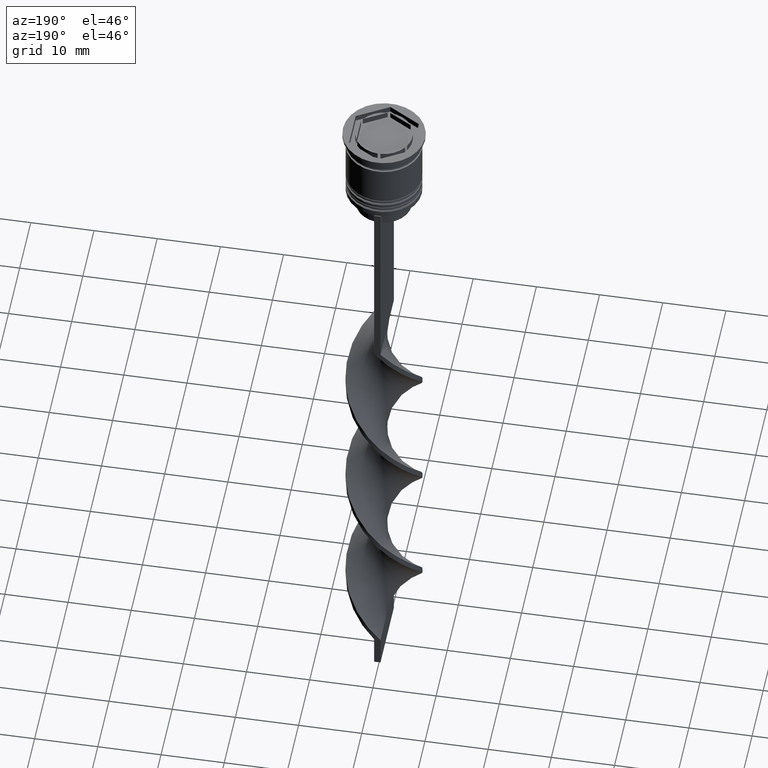
[diagram: clean part render]
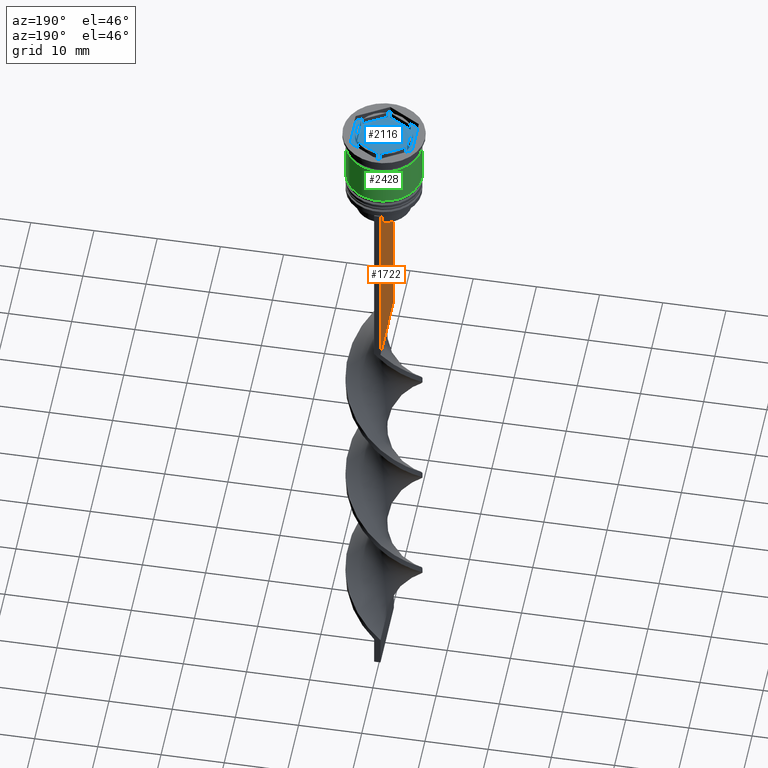
[diagram: same view with three faces highlighted in distinct colors, each labeled with its STEP entity id]
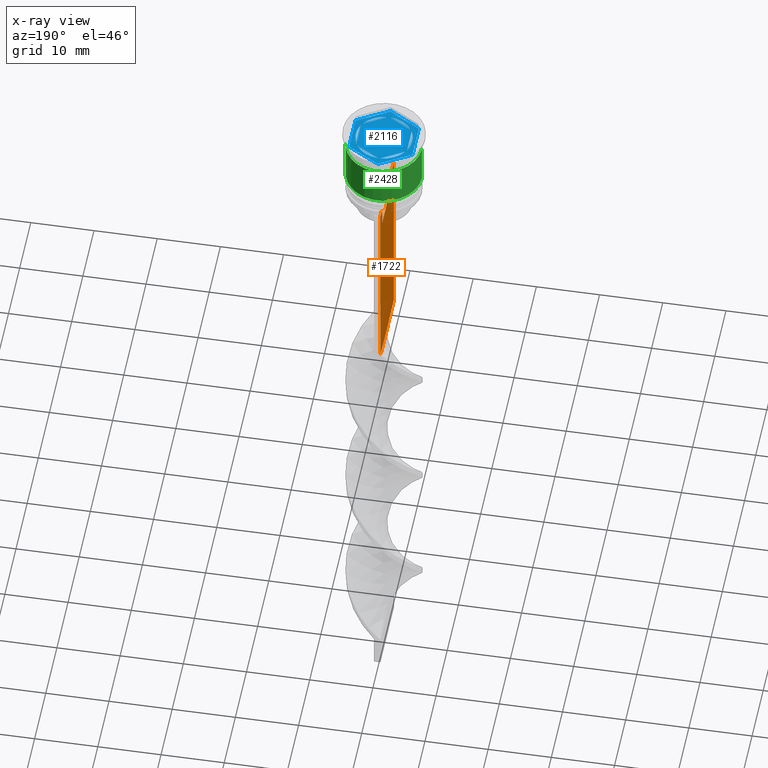
[diagram: x-ray of the same camera — body ghosted, the three highlighted faces saturated]
A machine part, auxiliary view with three faces highlighted in distinct colors.
The next image is the same camera in x-ray (body ghosted, the three faces saturated) — at least one of them is partly hidden behind the body in this view.
Their STEP definitions:

[orange] entity #1722 — the highlighted planar face has unit normal (-1, 0, 0).
#66 = VECTOR ( 'NONE', #1417, 1000.000000000000000 ) ;
#75 = ORIENTED_EDGE ( 'NONE', *, *, #507, .F. ) ;
#76 = EDGE_CURVE ( 'NONE', #554, #842, #330, .T. ) ;
#86 = CARTESIAN_POINT ( 'NONE',  ( -0.4999999999999997780, 4.371498598878878816, -13.00000000000000178 ) ) ;
#166 = CARTESIAN_POINT ( 'NONE',  ( -0.4999999999999997780, 4.371498598878878816, -13.00000000000000178 ) ) ;
#189 = DIRECTION ( 'NONE',  ( 0.000000000000000000, 1.000000000000000000, 0.000000000000000000 ) ) ;
#238 = VECTOR ( 'NONE', #2755, 1000.000000000000000 ) ;
#269 = ORIENTED_EDGE ( 'NONE', *, *, #3526, .F. ) ;
#278 = DIRECTION ( 'NONE',  ( 0.000000000000000000, 0.000000000000000000, -1.000000000000000000 ) ) ;
#330 = LINE ( 'NONE', #2545, #66 ) ;
#380 = DIRECTION ( 'NONE',  ( 0.000000000000000000, -1.000000000000000000, 0.000000000000000000 ) ) ;
#405 = EDGE_CURVE ( 'NONE', #720, #2137, #1685, .T. ) ;
#443 = CARTESIAN_POINT ( 'NONE',  ( -0.4999999999999997780, -4.874423042781576676, -12.50000000000000000 ) ) ;
#474 = CARTESIAN_POINT ( 'NONE',  ( -0.4999999999999997780, -6.000000000000000000, -12.50000000000000000 ) ) ;
#490 = LINE ( 'NONE', #474, #3397 ) ;
#507 = EDGE_CURVE ( 'NONE', #1478, #2245, #2344, .T. ) ;
#511 = CARTESIAN_POINT ( 'NONE',  ( -0.4999999999999997780, -4.371498598878878816, -13.00000000000000178 ) ) ;
#522 = VECTOR ( 'NONE', #3586, 1000.000000000000000 ) ;
#554 = VERTEX_POINT ( 'NONE', #3575 ) ;
#579 = EDGE_CURVE ( 'NONE', #1487, #2999, #3084, .T. ) ;
#628 = VECTOR ( 'NONE', #189, 1000.000000000000000 ) ;
#695 = ORIENTED_EDGE ( 'NONE', *, *, #579, .T. ) ;
#703 = CARTESIAN_POINT ( 'NONE',  ( -0.4999999999999997780, 4.539195634199897356, -12.83338923751318816 ) ) ;
#720 = VERTEX_POINT ( 'NONE', #1479 ) ;
#725 = DIRECTION ( 'NONE',  ( 0.000000000000000000, 0.000000000000000000, -1.000000000000000000 ) ) ;
#744 = LINE ( 'NONE', #1890, #522 ) ;
#842 = VERTEX_POINT ( 'NONE', #3131 ) ;
#845 = EDGE_CURVE ( 'NONE', #2510, #3006, #2031, .T. ) ;
#870 = ORIENTED_EDGE ( 'NONE', *, *, #1009, .F. ) ;
#954 = CARTESIAN_POINT ( 'NONE',  ( -0.4999999999999997780, 4.706831415367290106, -12.66671683478478982 ) ) ;
#996 = CARTESIAN_POINT ( 'NONE',  ( -0.4999999999999997780, -4.874423042781576676, -12.50000000000000000 ) ) ;
#1009 = EDGE_CURVE ( 'NONE', #3006, #2753, #3425, .T. ) ;
#1039 = CARTESIAN_POINT ( 'NONE',  ( -0.4999999999999997780, -4.371498598878878816, -13.00000000000000178 ) ) ;
#1134 = EDGE_LOOP ( 'NONE', ( #870, #3245, #1903, #695, #3162, #1596, #269, #75, #1341, #2025, #1422, #3188 ) ) ;
#1148 = CARTESIAN_POINT ( 'NONE',  ( -0.4999999999999997780, -4.371498598878878816, 0.000000000000000000 ) ) ;
#1206 = CARTESIAN_POINT ( 'NONE',  ( -0.4999999999999997780, -6.000000000000000000, -12.50000000000000000 ) ) ;
#1235 = CARTESIAN_POINT ( 'NONE',  ( -0.4999999999999997780, 4.371498598878878816, -15.50000000000000000 ) ) ;
#1244 = LINE ( 'NONE', #3524, #628 ) ;
#1334 = VECTOR ( 'NONE', #725, 1000.000000000000000 ) ;
#1341 = ORIENTED_EDGE ( 'NONE', *, *, #2146, .F. ) ;
#1417 = DIRECTION ( 'NONE',  ( 0.000000000000000000, 0.000000000000000000, -1.000000000000000000 ) ) ;
#1422 = ORIENTED_EDGE ( 'NONE', *, *, #2819, .F. ) ;
#1450 = DIRECTION ( 'NONE',  ( 0.000000000000000000, 0.000000000000000000, 1.000000000000000000 ) ) ;
#1478 = VERTEX_POINT ( 'NONE', #996 ) ;
#1479 = CARTESIAN_POINT ( 'NONE',  ( -0.4999999999999997780, -4.371498598878878816, -15.50000000000000000 ) ) ;
#1482 = CARTESIAN_POINT ( 'NONE',  ( -0.4999999999999997780, 6.000000000000000888, -43.50000000000000000 ) ) ;
#1487 = VERTEX_POINT ( 'NONE', #2941 ) ;
#1584 = DIRECTION ( 'NONE',  ( 0.000000000000000000, -1.000000000000000000, 0.000000000000000000 ) ) ;
#1596 = ORIENTED_EDGE ( 'NONE', *, *, #76, .F. ) ;
#1611 = EDGE_CURVE ( 'NONE', #842, #2999, #1244, .T. ) ;
#1661 = B_SPLINE_CURVE_WITH_KNOTS ( 'NONE', 3,
 ( #511, #3551, #2434, #443 ),
 .UNSPECIFIED., .F., .F.,
 ( 4, 4 ),
 ( 0.02089901220910806920, 0.02161421017310284978 ),
 .UNSPECIFIED. ) ;
#1685 = LINE ( 'NONE', #1148, #2049 ) ;
#1696 = CARTESIAN_POINT ( 'NONE',  ( -0.4999999999999997780, -6.000000000000000000, -12.50000000000000000 ) ) ;
#1704 = CARTESIAN_POINT ( 'NONE',  ( -0.4999999999999997780, 6.000000000000000888, -0.4584054212077061097 ) ) ;
#1722 = ADVANCED_FACE ( 'NONE', ( #1959 ), #2848, .T. ) ;
#1865 = AXIS2_PLACEMENT_3D ( 'NONE', #3405, #2865, #1450 ) ;
#1890 = CARTESIAN_POINT ( 'NONE',  ( -0.4999999999999997780, -6.000000000000000000, -12.50000000000000000 ) ) ;
#1903 = ORIENTED_EDGE ( 'NONE', *, *, #3553, .F. ) ;
#1959 = FACE_OUTER_BOUND ( 'NONE', #1134, .T. ) ;
#1995 = LINE ( 'NONE', #2846, #238 ) ;
#1997 = DIRECTION ( 'NONE',  ( 0.000000000000000000, -1.000000000000000000, 0.000000000000000000 ) ) ;
#2002 = CARTESIAN_POINT ( 'NONE',  ( -0.4999999999999997780, 5.878775382679627626, -12.50000000000000000 ) ) ;
#2025 = ORIENTED_EDGE ( 'NONE', *, *, #405, .F. ) ;
#2031 = LINE ( 'NONE', #1696, #2101 ) ;
#2049 = VECTOR ( 'NONE', #3416, 1000.000000000000000 ) ;
#2101 = VECTOR ( 'NONE', #1997, 1000.000000000000000 ) ;
#2137 = VERTEX_POINT ( 'NONE', #1039 ) ;
#2146 = EDGE_CURVE ( 'NONE', #2137, #1478, #1661, .T. ) ;
#2245 = VERTEX_POINT ( 'NONE', #2732 ) ;
#2344 = LINE ( 'NONE', #1206, #2933 ) ;
#2348 = CARTESIAN_POINT ( 'NONE',  ( -0.4999999999999997780, 4.874423042781576676, -12.50000000000000000 ) ) ;
#2364 = CARTESIAN_POINT ( 'NONE',  ( -0.4999999999999997780, 4.874423042781576676, -12.50000000000000000 ) ) ;
#2434 = CARTESIAN_POINT ( 'NONE',  ( -0.4999999999999997780, -4.706831372970964544, -12.66671687695981596 ) ) ;
#2480 = VERTEX_POINT ( 'NONE', #1235 ) ;
#2510 = VERTEX_POINT ( 'NONE', #2002 ) ;
#2545 = CARTESIAN_POINT ( 'NONE',  ( -0.4999999999999997780, -6.000000000000000000, -0.4584054212077061097 ) ) ;
#2732 = CARTESIAN_POINT ( 'NONE',  ( -0.4999999999999997780, -5.878775382679627626, -12.50000000000000000 ) ) ;
#2753 = VERTEX_POINT ( 'NONE', #86 ) ;
#2755 = DIRECTION ( 'NONE',  ( 0.000000000000000000, -1.000000000000000000, 0.000000000000000000 ) ) ;
#2819 = EDGE_CURVE ( 'NONE', #2480, #720, #1995, .T. ) ;
#2846 = CARTESIAN_POINT ( 'NONE',  ( -0.4999999999999997780, 4.399999999999999467, -15.50000000000000000 ) ) ;
#2848 = PLANE ( 'NONE',  #1865 ) ;
#2865 = DIRECTION ( 'NONE',  ( -1.000000000000000000, 0.000000000000000000, 0.000000000000000000 ) ) ;
#2933 = VECTOR ( 'NONE', #380, 1000.000000000000000 ) ;
#2941 = CARTESIAN_POINT ( 'NONE',  ( -0.4999999999999997780, 6.000000000000001776, -12.50000000000000000 ) ) ;
#2984 = VECTOR ( 'NONE', #278, 1000.000000000000000 ) ;
#2999 = VERTEX_POINT ( 'NONE', #1482 ) ;
#3006 = VERTEX_POINT ( 'NONE', #2364 ) ;
#3084 = LINE ( 'NONE', #1704, #2984 ) ;
#3131 = CARTESIAN_POINT ( 'NONE',  ( -0.4999999999999997780, -6.000000000000000000, -43.50000000000000000 ) ) ;
#3162 = ORIENTED_EDGE ( 'NONE', *, *, #1611, .F. ) ;
#3188 = ORIENTED_EDGE ( 'NONE', *, *, #3540, .F. ) ;
#3242 = CARTESIAN_POINT ( 'NONE',  ( -0.4999999999999997780, 4.371498598878878816, 0.000000000000000000 ) ) ;
#3245 = ORIENTED_EDGE ( 'NONE', *, *, #845, .F. ) ;
#3397 = VECTOR ( 'NONE', #1584, 1000.000000000000000 ) ;
#3405 = CARTESIAN_POINT ( 'NONE',  ( -0.4999999999999997780, -6.000000000000000000, -0.4584054212077061097 ) ) ;
#3416 = DIRECTION ( 'NONE',  ( -0.000000000000000000, -0.000000000000000000, 1.000000000000000000 ) ) ;
#3425 = B_SPLINE_CURVE_WITH_KNOTS ( 'NONE', 3,
 ( #2348, #954, #703, #166 ),
 .UNSPECIFIED., .F., .F.,
 ( 4, 4 ),
 ( 0.008336552452178418518, 0.009045730124312837891 ),
 .UNSPECIFIED. ) ;
#3515 = LINE ( 'NONE', #3242, #1334 ) ;
#3524 = CARTESIAN_POINT ( 'NONE',  ( -0.4999999999999997780, -6.000000000000000000, -43.50000000000000000 ) ) ;
#3526 = EDGE_CURVE ( 'NONE', #2245, #554, #744, .T. ) ;
#3540 = EDGE_CURVE ( 'NONE', #2753, #2480, #3515, .T. ) ;
#3551 = CARTESIAN_POINT ( 'NONE',  ( -0.4999999999999997780, -4.539195586926424220, -12.83338928448044136 ) ) ;
#3553 = EDGE_CURVE ( 'NONE', #1487, #2510, #490, .T. ) ;
#3575 = CARTESIAN_POINT ( 'NONE',  ( -0.4999999999999997780, -6.000000000000000000, -12.50000000000000000 ) ) ;
#3586 = DIRECTION ( 'NONE',  ( 0.000000000000000000, -1.000000000000000000, 0.000000000000000000 ) ) ;

[blue] entity #2116 — the highlighted planar face has unit normal (0, 0, 1).
#23 = CARTESIAN_POINT ( 'NONE',  ( -4.000000000000000000, -2.309401076758503368, -1.000000000000000888 ) ) ;
#95 = ORIENTED_EDGE ( 'NONE', *, *, #1333, .T. ) ;
#152 = LINE ( 'NONE', #2950, #1041 ) ;
#161 = VERTEX_POINT ( 'NONE', #1247 ) ;
#168 = LINE ( 'NONE', #3139, #639 ) ;
#187 = DIRECTION ( 'NONE',  ( 0.8660254037844385966, 0.5000000000000001110, -0.000000000000000000 ) ) ;
#229 = FACE_OUTER_BOUND ( 'NONE', #3119, .T. ) ;
#242 = AXIS2_PLACEMENT_3D ( 'NONE', #590, #2840, #318 ) ;
#270 = CARTESIAN_POINT ( 'NONE',  ( 4.000000000000000000, 2.309401076758504257, -1.000000000000000888 ) ) ;
#276 = VERTEX_POINT ( 'NONE', #1511 ) ;
#302 = DIRECTION ( 'NONE',  ( 0.000000000000000000, 0.000000000000000000, 1.000000000000000000 ) ) ;
#318 = DIRECTION ( 'NONE',  ( 1.000000000000000000, 0.000000000000000000, 0.000000000000000000 ) ) ;
#351 = VECTOR ( 'NONE', #2185, 1000.000000000000000 ) ;
#386 = VERTEX_POINT ( 'NONE', #755 ) ;
#429 = CARTESIAN_POINT ( 'NONE',  ( 0.000000000000000000, 0.000000000000000000, -1.000000000000000000 ) ) ;
#477 = LINE ( 'NONE', #1311, #351 ) ;
#483 = CARTESIAN_POINT ( 'NONE',  ( 3.785357107135712162, -2.433325208733341238, -1.000000000000000888 ) ) ;
#499 = CARTESIAN_POINT ( 'NONE',  ( 4.336808689942017736E-16, 4.618802153517006737, -1.000000000000000888 ) ) ;
#578 = AXIS2_PLACEMENT_3D ( 'NONE', #1122, #2253, #3094 ) ;
#590 = CARTESIAN_POINT ( 'NONE',  ( 0.000000000000000000, 0.000000000000000000, -1.000000000000000000 ) ) ;
#618 = ORIENTED_EDGE ( 'NONE', *, *, #2040, .F. ) ;
#627 = DIRECTION ( 'NONE',  ( -0.8660254037844387076, 0.4999999999999997224, 0.000000000000000000 ) ) ;
#635 = CIRCLE ( 'NONE', #578, 4.500000000000000888 ) ;
#639 = VECTOR ( 'NONE', #2386, 1000.000000000000000 ) ;
#707 = ORIENTED_EDGE ( 'NONE', *, *, #2379, .F. ) ;
#715 = DIRECTION ( 'NONE',  ( -0.8660254037844387076, -0.4999999999999998890, 0.000000000000000000 ) ) ;
#729 = DIRECTION ( 'NONE',  ( 0.000000000000000000, 0.000000000000000000, 1.000000000000000000 ) ) ;
#748 = FACE_BOUND ( 'NONE', #2779, .T. ) ;
#755 = CARTESIAN_POINT ( 'NONE',  ( 0.2146428928642876155, -4.494878021542170643, -1.000000000000000888 ) ) ;
#756 = ORIENTED_EDGE ( 'NONE', *, *, #2084, .T. ) ;
#766 = ORIENTED_EDGE ( 'NONE', *, *, #982, .F. ) ;
#770 = CARTESIAN_POINT ( 'NONE',  ( 5.612359739892467248E-18, -5.773502691896257311, -1.000000000000000000 ) ) ;
#803 = AXIS2_PLACEMENT_3D ( 'NONE', #2962, #729, #1855 ) ;
#815 = VERTEX_POINT ( 'NONE', #1735 ) ;
#864 = CIRCLE ( 'NONE', #3329, 4.500000000000000888 ) ;
#908 = EDGE_CURVE ( 'NONE', #276, #2431, #1138, .T. ) ;
#927 = VECTOR ( 'NONE', #3144, 1000.000000000000227 ) ;
#931 = CIRCLE ( 'NONE', #242, 4.500000000000000888 ) ;
#979 = VECTOR ( 'NONE', #627, 1000.000000000000114 ) ;
#982 = EDGE_CURVE ( 'NONE', #1183, #2629, #635, .T. ) ;
#1002 = VERTEX_POINT ( 'NONE', #2829 ) ;
#1041 = VECTOR ( 'NONE', #715, 1000.000000000000114 ) ;
#1103 = ORIENTED_EDGE ( 'NONE', *, *, #3339, .F. ) ;
#1104 = DIRECTION ( 'NONE',  ( 0.8660254037844387076, -0.4999999999999998335, 0.000000000000000000 ) ) ;
#1107 = VERTEX_POINT ( 'NONE', #1485 ) ;
#1115 = DIRECTION ( 'NONE',  ( 1.000000000000000000, 0.000000000000000000, 0.000000000000000000 ) ) ;
#1122 = CARTESIAN_POINT ( 'NONE',  ( 0.000000000000000000, 0.000000000000000000, -1.000000000000000000 ) ) ;
#1124 = EDGE_CURVE ( 'NONE', #1107, #3478, #3221, .T. ) ;
#1138 = LINE ( 'NONE', #270, #2404 ) ;
#1172 = ORIENTED_EDGE ( 'NONE', *, *, #1538, .F. ) ;
#1183 = VERTEX_POINT ( 'NONE', #1802 ) ;
#1212 = VECTOR ( 'NONE', #187, 1000.000000000000114 ) ;
#1223 = EDGE_CURVE ( 'NONE', #3154, #815, #2397, .T. ) ;
#1225 = ORIENTED_EDGE ( 'NONE', *, *, #3390, .F. ) ;
#1241 = CARTESIAN_POINT ( 'NONE',  ( -5.000000000000000888, -2.886751345948129543, -1.000000000000000000 ) ) ;
#1247 = CARTESIAN_POINT ( 'NONE',  ( -4.000000000000000000, 2.061552812808831625, -1.000000000000000888 ) ) ;
#1272 = VERTEX_POINT ( 'NONE', #2915 ) ;
#1276 = PLANE ( 'NONE',  #803 ) ;
#1300 = ORIENTED_EDGE ( 'NONE', *, *, #2781, .F. ) ;
#1301 = EDGE_CURVE ( 'NONE', #3180, #1002, #2623, .T. ) ;
#1311 = CARTESIAN_POINT ( 'NONE',  ( -5.000000000000000888, 2.886751345948128655, -1.000000000000000000 ) ) ;
#1331 = DIRECTION ( 'NONE',  ( -0.8660254037844387076, -0.4999999999999998890, 0.000000000000000000 ) ) ;
#1333 = EDGE_CURVE ( 'NONE', #2772, #3532, #477, .T. ) ;
#1360 = VERTEX_POINT ( 'NONE', #1588 ) ;
#1391 = VECTOR ( 'NONE', #1615, 1000.000000000000000 ) ;
#1445 = LINE ( 'NONE', #2326, #1391 ) ;
#1459 = ORIENTED_EDGE ( 'NONE', *, *, #3014, .T. ) ;
#1485 = CARTESIAN_POINT ( 'NONE',  ( 5.000000000000000888, 2.886751345948129543, -1.000000000000000000 ) ) ;
#1503 = CIRCLE ( 'NONE', #2986, 4.500000000000000888 ) ;
#1511 = CARTESIAN_POINT ( 'NONE',  ( 0.2146428928642876155, 4.494878021542170643, -1.000000000000000888 ) ) ;
#1515 = EDGE_LOOP ( 'NONE', ( #2307, #1300, #766 ) ) ;
#1521 = CARTESIAN_POINT ( 'NONE',  ( 5.000000000000000888, 2.886751345948129543, -1.000000000000000000 ) ) ;
#1538 = EDGE_CURVE ( 'NONE', #1360, #2449, #168, .T. ) ;
#1552 = FACE_BOUND ( 'NONE', #2668, .T. ) ;
#1557 = AXIS2_PLACEMENT_3D ( 'NONE', #1749, #3213, #3434 ) ;
#1588 = CARTESIAN_POINT ( 'NONE',  ( 3.999999999999999112, 2.061552812808832513, -1.000000000000000888 ) ) ;
#1606 = CARTESIAN_POINT ( 'NONE',  ( 5.000000000000000000, -2.886751345948128655, -1.000000000000000000 ) ) ;
#1615 = DIRECTION ( 'NONE',  ( 0.000000000000000000, 1.000000000000000000, 0.000000000000000000 ) ) ;
#1618 = VECTOR ( 'NONE', #2419, 1000.000000000000000 ) ;
#1666 = CARTESIAN_POINT ( 'NONE',  ( 0.000000000000000000, 0.000000000000000000, -1.000000000000000000 ) ) ;
#1687 = AXIS2_PLACEMENT_3D ( 'NONE', #3002, #3033, #2205 ) ;
#1706 = CARTESIAN_POINT ( 'NONE',  ( 0.000000000000000000, 0.000000000000000000, -1.000000000000000000 ) ) ;
#1735 = CARTESIAN_POINT ( 'NONE',  ( -0.2146428928642871992, -4.494878021542169755, -1.000000000000000888 ) ) ;
#1749 = CARTESIAN_POINT ( 'NONE',  ( 0.000000000000000000, 0.000000000000000000, -1.000000000000000000 ) ) ;
#1802 = CARTESIAN_POINT ( 'NONE',  ( -4.500000000000000888, 0.000000000000000000, -1.000000000000000000 ) ) ;
#1841 = LINE ( 'NONE', #1606, #1618 ) ;
#1855 = DIRECTION ( 'NONE',  ( 1.000000000000000000, 0.000000000000000000, -0.000000000000000000 ) ) ;
#1936 = VECTOR ( 'NONE', #2249, 1000.000000000000227 ) ;
#1957 = ORIENTED_EDGE ( 'NONE', *, *, #908, .F. ) ;
#1964 = EDGE_LOOP ( 'NONE', ( #1225, #618 ) ) ;
#1992 = VECTOR ( 'NONE', #2625, 1000.000000000000114 ) ;
#2038 = VERTEX_POINT ( 'NONE', #483 ) ;
#2040 = EDGE_CURVE ( 'NONE', #1272, #3331, #3578, .T. ) ;
#2055 = CIRCLE ( 'NONE', #3044, 4.500000000000000888 ) ;
#2064 = ORIENTED_EDGE ( 'NONE', *, *, #2922, .F. ) ;
#2084 = EDGE_CURVE ( 'NONE', #1002, #1107, #1841, .T. ) ;
#2116 = ADVANCED_FACE ( 'NONE', ( #1552, #748, #3299, #3018, #2748, #3519, #229 ), #1276, .T. ) ;
#2140 = CARTESIAN_POINT ( 'NONE',  ( -5.000000000000000888, -2.886751345948129543, -1.000000000000000000 ) ) ;
#2185 = DIRECTION ( 'NONE',  ( 0.000000000000000000, -1.000000000000000000, 0.000000000000000000 ) ) ;
#2202 = EDGE_LOOP ( 'NONE', ( #707, #2064 ) ) ;
#2205 = DIRECTION ( 'NONE',  ( 1.000000000000000000, 0.000000000000000000, 0.000000000000000000 ) ) ;
#2217 = EDGE_CURVE ( 'NONE', #2449, #1360, #2346, .T. ) ;
#2249 = DIRECTION ( 'NONE',  ( -0.8660254037844384856, 0.5000000000000001110, 0.000000000000000000 ) ) ;
#2253 = DIRECTION ( 'NONE',  ( 0.000000000000000000, 0.000000000000000000, 1.000000000000000000 ) ) ;
#2269 = CARTESIAN_POINT ( 'NONE',  ( -5.000000000000000888, 2.886751345948128655, -1.000000000000000000 ) ) ;
#2284 = LINE ( 'NONE', #23, #1936 ) ;
#2297 = ORIENTED_EDGE ( 'NONE', *, *, #1301, .T. ) ;
#2307 = ORIENTED_EDGE ( 'NONE', *, *, #2369, .F. ) ;
#2326 = CARTESIAN_POINT ( 'NONE',  ( -4.000000000000000000, 2.309401076758502924, -1.000000000000000888 ) ) ;
#2346 = CIRCLE ( 'NONE', #1687, 4.500000000000000888 ) ;
#2369 = EDGE_CURVE ( 'NONE', #161, #1183, #1503, .T. ) ;
#2379 = EDGE_CURVE ( 'NONE', #386, #2038, #864, .T. ) ;
#2386 = DIRECTION ( 'NONE',  ( -1.877893248421448296E-16, -1.000000000000000000, 0.000000000000000000 ) ) ;
#2397 = CIRCLE ( 'NONE', #1557, 4.500000000000000888 ) ;
#2404 = VECTOR ( 'NONE', #1104, 1000.000000000000114 ) ;
#2419 = DIRECTION ( 'NONE',  ( 1.502314598737159278E-16, 1.000000000000000000, 0.000000000000000000 ) ) ;
#2423 = ORIENTED_EDGE ( 'NONE', *, *, #1124, .T. ) ;
#2431 = VERTEX_POINT ( 'NONE', #3608 ) ;
#2449 = VERTEX_POINT ( 'NONE', #2604 ) ;
#2514 = ORIENTED_EDGE ( 'NONE', *, *, #2936, .F. ) ;
#2583 = DIRECTION ( 'NONE',  ( 0.000000000000000000, 0.000000000000000000, 1.000000000000000000 ) ) ;
#2604 = CARTESIAN_POINT ( 'NONE',  ( 3.999999999999999112, -2.061552812808833846, -1.000000000000000888 ) ) ;
#2623 = LINE ( 'NONE', #3419, #927 ) ;
#2625 = DIRECTION ( 'NONE',  ( 0.8660254037844387076, -0.4999999999999997224, 0.000000000000000000 ) ) ;
#2629 = VERTEX_POINT ( 'NONE', #2650 ) ;
#2650 = CARTESIAN_POINT ( 'NONE',  ( -4.000000000000000000, -2.061552812808831625, -1.000000000000000888 ) ) ;
#2668 = EDGE_LOOP ( 'NONE', ( #2514, #1957 ) ) ;
#2712 = CARTESIAN_POINT ( 'NONE',  ( 0.000000000000000000, 5.773502691896257311, -1.000000000000000000 ) ) ;
#2733 = LINE ( 'NONE', #2785, #2884 ) ;
#2748 = FACE_BOUND ( 'NONE', #1515, .T. ) ;
#2765 = ORIENTED_EDGE ( 'NONE', *, *, #1223, .F. ) ;
#2772 = VERTEX_POINT ( 'NONE', #2269 ) ;
#2779 = EDGE_LOOP ( 'NONE', ( #3407, #1172 ) ) ;
#2781 = EDGE_CURVE ( 'NONE', #2629, #161, #1445, .T. ) ;
#2785 = CARTESIAN_POINT ( 'NONE',  ( 0.000000000000000000, 5.773502691896257311, -1.000000000000000000 ) ) ;
#2829 = CARTESIAN_POINT ( 'NONE',  ( 5.000000000000000000, -2.886751345948128655, -1.000000000000000000 ) ) ;
#2840 = DIRECTION ( 'NONE',  ( 0.000000000000000000, 0.000000000000000000, 1.000000000000000000 ) ) ;
#2857 = CARTESIAN_POINT ( 'NONE',  ( -0.2146428928642867551, 4.494878021542170643, -1.000000000000000888 ) ) ;
#2884 = VECTOR ( 'NONE', #1331, 1000.000000000000114 ) ;
#2915 = CARTESIAN_POINT ( 'NONE',  ( -3.785357107135713939, 2.433325208733339018, -1.000000000000000888 ) ) ;
#2922 = EDGE_CURVE ( 'NONE', #2038, #386, #152, .T. ) ;
#2936 = EDGE_CURVE ( 'NONE', #2431, #276, #2055, .T. ) ;
#2950 = CARTESIAN_POINT ( 'NONE',  ( -8.673617379884035472E-16, -4.618802153517006737, -1.000000000000000888 ) ) ;
#2962 = CARTESIAN_POINT ( 'NONE',  ( 0.000000000000000000, 0.000000000000000000, -1.000000000000000000 ) ) ;
#2964 = LINE ( 'NONE', #1241, #1992 ) ;
#2979 = CARTESIAN_POINT ( 'NONE',  ( -3.785357107135713939, -2.433325208733338130, -1.000000000000000888 ) ) ;
#2986 = AXIS2_PLACEMENT_3D ( 'NONE', #1706, #302, #3052 ) ;
#3002 = CARTESIAN_POINT ( 'NONE',  ( 0.000000000000000000, 0.000000000000000000, -1.000000000000000000 ) ) ;
#3014 = EDGE_CURVE ( 'NONE', #3532, #3180, #2964, .T. ) ;
#3018 = FACE_BOUND ( 'NONE', #3282, .T. ) ;
#3033 = DIRECTION ( 'NONE',  ( 0.000000000000000000, 0.000000000000000000, 1.000000000000000000 ) ) ;
#3044 = AXIS2_PLACEMENT_3D ( 'NONE', #429, #3167, #3452 ) ;
#3052 = DIRECTION ( 'NONE',  ( 1.000000000000000000, 0.000000000000000000, 0.000000000000000000 ) ) ;
#3094 = DIRECTION ( 'NONE',  ( 1.000000000000000000, 0.000000000000000000, 0.000000000000000000 ) ) ;
#3119 = EDGE_LOOP ( 'NONE', ( #2423, #3428, #95, #1459, #2297, #756 ) ) ;
#3139 = CARTESIAN_POINT ( 'NONE',  ( 3.999999999999999112, -2.309401076758503812, -1.000000000000000888 ) ) ;
#3144 = DIRECTION ( 'NONE',  ( 0.8660254037844385966, 0.4999999999999998890, 0.000000000000000000 ) ) ;
#3154 = VERTEX_POINT ( 'NONE', #2979 ) ;
#3167 = DIRECTION ( 'NONE',  ( 0.000000000000000000, 0.000000000000000000, 1.000000000000000000 ) ) ;
#3174 = EDGE_CURVE ( 'NONE', #3478, #2772, #2733, .T. ) ;
#3180 = VERTEX_POINT ( 'NONE', #770 ) ;
#3213 = DIRECTION ( 'NONE',  ( 0.000000000000000000, 0.000000000000000000, 1.000000000000000000 ) ) ;
#3221 = LINE ( 'NONE', #1521, #979 ) ;
#3282 = EDGE_LOOP ( 'NONE', ( #2765, #1103 ) ) ;
#3299 = FACE_BOUND ( 'NONE', #2202, .T. ) ;
#3329 = AXIS2_PLACEMENT_3D ( 'NONE', #1666, #2583, #1115 ) ;
#3331 = VERTEX_POINT ( 'NONE', #2857 ) ;
#3339 = EDGE_CURVE ( 'NONE', #815, #3154, #2284, .T. ) ;
#3390 = EDGE_CURVE ( 'NONE', #3331, #1272, #931, .T. ) ;
#3407 = ORIENTED_EDGE ( 'NONE', *, *, #2217, .F. ) ;
#3419 = CARTESIAN_POINT ( 'NONE',  ( 5.612359739892467248E-18, -5.773502691896257311, -1.000000000000000000 ) ) ;
#3428 = ORIENTED_EDGE ( 'NONE', *, *, #3174, .T. ) ;
#3434 = DIRECTION ( 'NONE',  ( 1.000000000000000000, 0.000000000000000000, 0.000000000000000000 ) ) ;
#3452 = DIRECTION ( 'NONE',  ( 1.000000000000000000, 0.000000000000000000, 0.000000000000000000 ) ) ;
#3478 = VERTEX_POINT ( 'NONE', #2712 ) ;
#3519 = FACE_BOUND ( 'NONE', #1964, .T. ) ;
#3532 = VERTEX_POINT ( 'NONE', #2140 ) ;
#3578 = LINE ( 'NONE', #499, #1212 ) ;
#3608 = CARTESIAN_POINT ( 'NONE',  ( 3.785357107135712162, 2.433325208733341238, -1.000000000000000888 ) ) ;

[green] entity #2428 — the highlighted cylindrical surface (partial cylindrical patch) has radius 6 mm, axis along (-0, -0, 1).
#18 = VECTOR ( 'NONE', #2529, 1000.000000000000000 ) ;
#46 = VERTEX_POINT ( 'NONE', #2875 ) ;
#81 = CARTESIAN_POINT ( 'NONE',  ( 6.000000000000000000, 0.000000000000000000, 0.000000000000000000 ) ) ;
#155 = VERTEX_POINT ( 'NONE', #656 ) ;
#246 = DIRECTION ( 'NONE',  ( 1.000000000000000000, 0.000000000000000000, 0.000000000000000000 ) ) ;
#317 = FACE_OUTER_BOUND ( 'NONE', #2568, .T. ) ;
#333 = LINE ( 'NONE', #81, #18 ) ;
#484 = ORIENTED_EDGE ( 'NONE', *, *, #3503, .T. ) ;
#503 = DIRECTION ( 'NONE',  ( -0.000000000000000000, -0.000000000000000000, 1.000000000000000000 ) ) ;
#532 = CARTESIAN_POINT ( 'NONE',  ( -6.000000000000001776, 7.347880794884121708E-16, -9.000000000000001776 ) ) ;
#656 = CARTESIAN_POINT ( 'NONE',  ( 5.999999999999999112, 0.000000000000000000, -2.500000000000000444 ) ) ;
#796 = ORIENTED_EDGE ( 'NONE', *, *, #2769, .F. ) ;
#1015 = DIRECTION ( 'NONE',  ( -0.000000000000000000, -0.000000000000000000, 1.000000000000000000 ) ) ;
#1034 = AXIS2_PLACEMENT_3D ( 'NONE', #2248, #2006, #2504 ) ;
#1586 = VERTEX_POINT ( 'NONE', #3471 ) ;
#1645 = ORIENTED_EDGE ( 'NONE', *, *, #1913, .T. ) ;
#1726 = CYLINDRICAL_SURFACE ( 'NONE', #1034, 6.000000000000000000 ) ;
#1908 = ORIENTED_EDGE ( 'NONE', *, *, #3277, .F. ) ;
#1913 = EDGE_CURVE ( 'NONE', #2393, #1586, #3455, .T. ) ;
#2006 = DIRECTION ( 'NONE',  ( -0.000000000000000000, -0.000000000000000000, 1.000000000000000000 ) ) ;
#2069 = DIRECTION ( 'NONE',  ( -0.000000000000000000, -0.000000000000000000, 1.000000000000000000 ) ) ;
#2083 = CARTESIAN_POINT ( 'NONE',  ( -6.000000000000000000, 7.347880794884119736E-16, 0.000000000000000000 ) ) ;
#2248 = CARTESIAN_POINT ( 'NONE',  ( 0.000000000000000000, 0.000000000000000000, 0.000000000000000000 ) ) ;
#2293 = CIRCLE ( 'NONE', #2708, 6.000000000000000888 ) ;
#2393 = VERTEX_POINT ( 'NONE', #532 ) ;
#2428 = ADVANCED_FACE ( 'NONE', ( #317 ), #1726, .T. ) ;
#2485 = CARTESIAN_POINT ( 'NONE',  ( 0.000000000000000000, 0.000000000000000000, -9.000000000000001776 ) ) ;
#2504 = DIRECTION ( 'NONE',  ( 1.000000000000000000, 0.000000000000000000, 0.000000000000000000 ) ) ;
#2529 = DIRECTION ( 'NONE',  ( -0.000000000000000000, -0.000000000000000000, 1.000000000000000000 ) ) ;
#2568 = EDGE_LOOP ( 'NONE', ( #484, #1645, #796, #1908 ) ) ;
#2610 = DIRECTION ( 'NONE',  ( 1.000000000000000000, 0.000000000000000000, 0.000000000000000000 ) ) ;
#2635 = VECTOR ( 'NONE', #2069, 1000.000000000000000 ) ;
#2705 = CIRCLE ( 'NONE', #3332, 5.999999999999999112 ) ;
#2708 = AXIS2_PLACEMENT_3D ( 'NONE', #2485, #1015, #246 ) ;
#2769 = EDGE_CURVE ( 'NONE', #155, #1586, #2705, .T. ) ;
#2875 = CARTESIAN_POINT ( 'NONE',  ( 6.000000000000000888, 0.000000000000000000, -9.000000000000001776 ) ) ;
#3092 = CARTESIAN_POINT ( 'NONE',  ( 0.000000000000000000, 0.000000000000000000, -2.500000000000000444 ) ) ;
#3277 = EDGE_CURVE ( 'NONE', #46, #155, #333, .T. ) ;
#3332 = AXIS2_PLACEMENT_3D ( 'NONE', #3092, #503, #2610 ) ;
#3455 = LINE ( 'NONE', #2083, #2635 ) ;
#3471 = CARTESIAN_POINT ( 'NONE',  ( -5.999999999999999112, 7.347880794884118750E-16, -2.500000000000000444 ) ) ;
#3503 = EDGE_CURVE ( 'NONE', #46, #2393, #2293, .T. ) ;